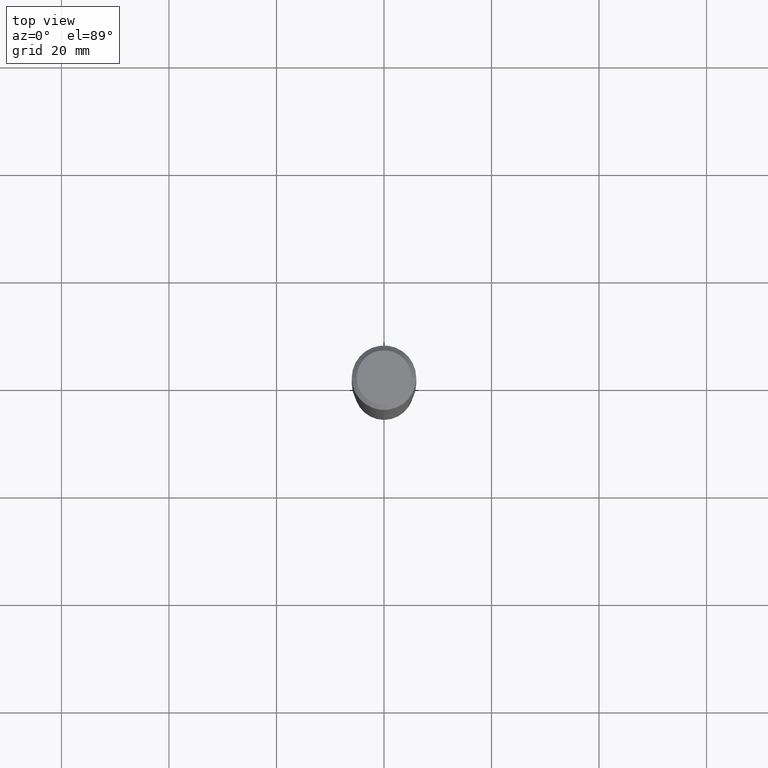
[diagram: clean part render]
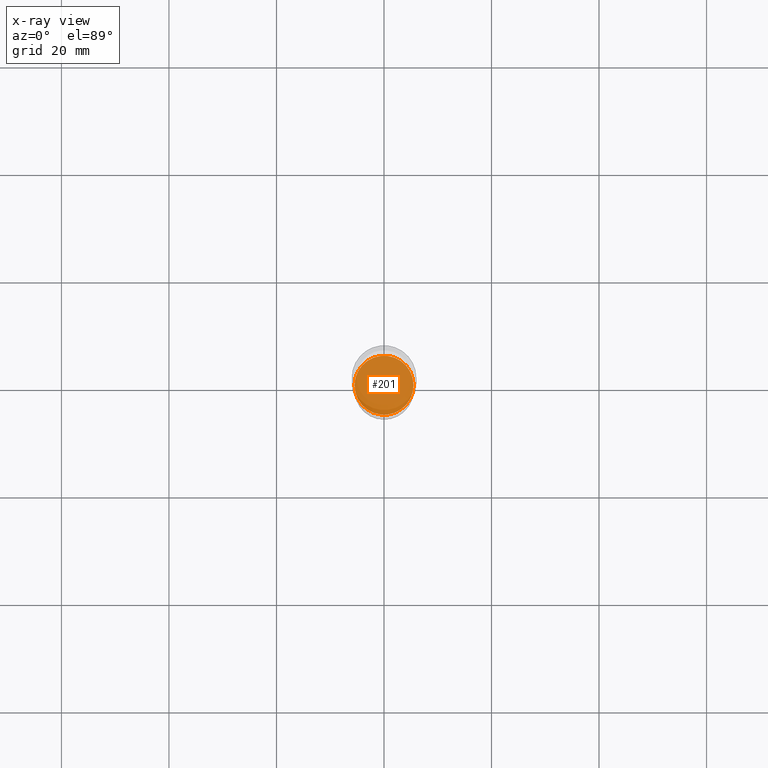
[diagram: x-ray — body ghosted, one internal face saturated and labeled with its STEP entity id]
A machine part, top view, then the same camera in x-ray: the body is ghosted and one INTERNAL B-rep face — a face not visible from any outside direction — is saturated and labeled: STEP entity #201.
In plain terms, the highlighted planar face has unit normal (-0, 0, 1).
Its self-contained STEP definition (entity closure, byte-faithful):
#10 = CARTESIAN_POINT ( 'NONE',  ( -0.2160500000000000198, -9.666386808563847423E-15, -3.209000000000000519 ) ) ;
#26 = CARTESIAN_POINT ( 'NONE',  ( 0.2160500000000000198, -1.271283270286177422E-14, -3.209000000000000519 ) ) ;
#52 = DIRECTION ( 'NONE',  ( -2.445468806185136597E-29, 3.491481338843145583E-15, 1.000000000000000000 ) ) ;
#85 = EDGE_LOOP ( 'NONE', ( #161, #108 ) ) ;
#97 = AXIS2_PLACEMENT_3D ( 'NONE', #441, #183, #467 ) ;
#99 = CIRCLE ( 'NONE', #153, 0.2160500000000000198 ) ;
#108 = ORIENTED_EDGE ( 'NONE', *, *, #434, .F. ) ;
#123 = VERTEX_POINT ( 'NONE', #26 ) ;
#144 = AXIS2_PLACEMENT_3D ( 'NONE', #300, #52, #370 ) ;
#153 = AXIS2_PLACEMENT_3D ( 'NONE', #295, #254, #410 ) ;
#161 = ORIENTED_EDGE ( 'NONE', *, *, #381, .F. ) ;
#183 = DIRECTION ( 'NONE',  ( -2.438088387897960049E-29, 3.491481338843145188E-15, 1.000000000000000000 ) ) ;
#193 = CIRCLE ( 'NONE', #144, 0.2160500000000000198 ) ;
#201 = ADVANCED_FACE ( 'NONE', ( #360 ), #284, .F. ) ;
#254 = DIRECTION ( 'NONE',  ( -2.445468806185136597E-29, 3.491481338843145583E-15, 1.000000000000000000 ) ) ;
#284 = PLANE ( 'NONE',  #97 ) ;
#295 = CARTESIAN_POINT ( 'NONE',  ( 7.847509399048105518E-29, -1.120416361634765640E-14, -3.209000000000000519 ) ) ;
#300 = CARTESIAN_POINT ( 'NONE',  ( 7.847509399048105518E-29, -1.120416361634765640E-14, -3.209000000000000519 ) ) ;
#360 = FACE_OUTER_BOUND ( 'NONE', #85, .T. ) ;
#368 = VERTEX_POINT ( 'NONE', #10 ) ;
#370 = DIRECTION ( 'NONE',  ( 1.000000000000000000, -6.982962677686266711E-15, 0.000000000000000000 ) ) ;
#381 = EDGE_CURVE ( 'NONE', #123, #368, #193, .T. ) ;
#410 = DIRECTION ( 'NONE',  ( 1.000000000000000000, -6.982962677686266711E-15, 0.000000000000000000 ) ) ;
#434 = EDGE_CURVE ( 'NONE', #368, #123, #99, .T. ) ;
#441 = CARTESIAN_POINT ( 'NONE',  ( 7.847509399048105518E-29, -1.120416361634765640E-14, -3.209000000000000519 ) ) ;
#467 = DIRECTION ( 'NONE',  ( 1.000000000000000000, -6.982962677686265922E-15, 4.876176775795935793E-29 ) ) ;